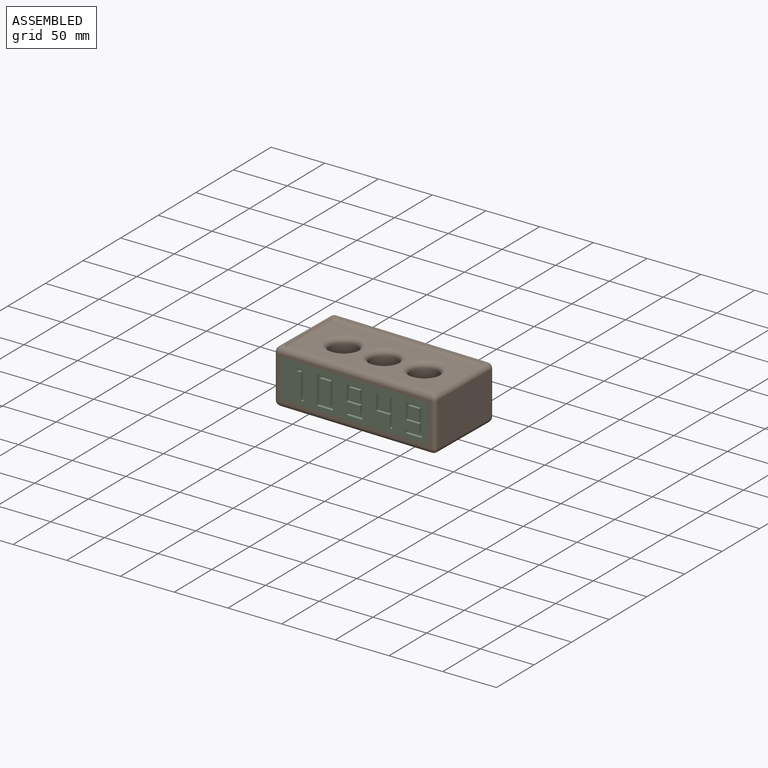
[diagram: assembled view]
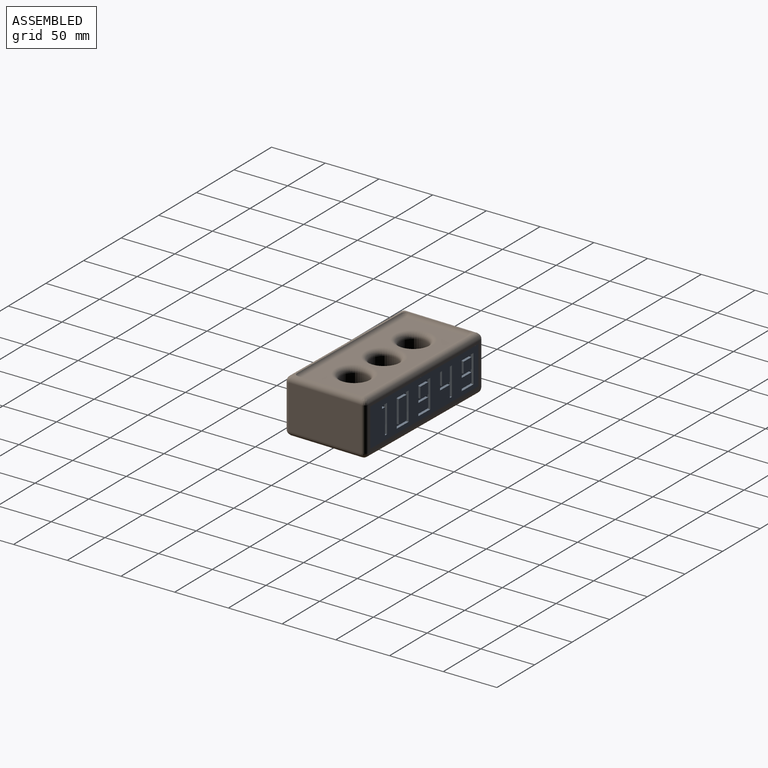
[diagram: assembled view, second angle]
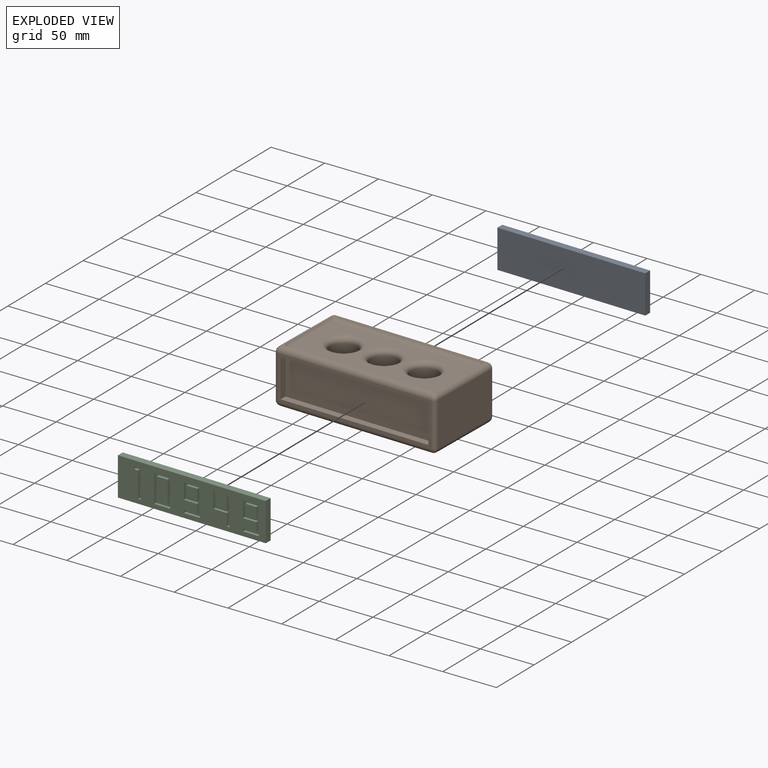
[diagram: exploded view]
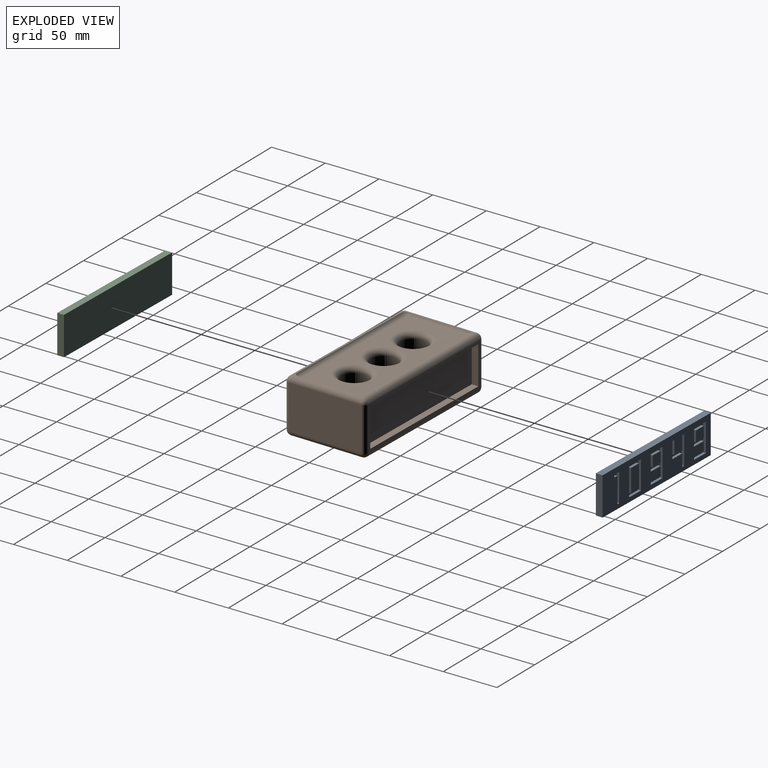
[diagram: exploded view, second angle]
ASSEMBLY  parts=3 mates=2
PART A: 62 faces, bbox 139.7x6.4x35.6 mm
  f0: plane 139.7x35.56mm, normal (0,-1,0), area 3771.3mm2, adj f1,f2,f3,f4,f6,f7,f8,f9
  f1: plane 35.56x6.35mm, normal (1,0,0), area 225.8mm2, adj f0,f2,f4,f5
  f2: plane 139.7x6.35mm, normal (0,0,1), area 887.1mm2, adj f0,f1,f3,f5
  f3: plane 35.56x6.35mm, normal (-1,0,0), area 225.8mm2, adj f0,f2,f4,f5
  f4: plane 139.7x6.35mm, normal (0,0,-1), area 887.1mm2, adj f0,f1,f3,f5
  f5: plane 139.7x35.56mm, normal (0,1,0), area 4967.7mm2, adj f1,f2,f3,f4
  f6: plane 15.24x2.54mm, normal (1,0,0), area 38.7mm2, adj f0,f7,f15,f16
  f7: plane 12.7x2.54mm, normal (0,0,1), area 32.3mm2, adj f0,f6,f8,f16
  f8: plane 11.16x2.54mm, normal (1,0,0), area 28.4mm2, adj f0,f7,f9,f16
  f9: plane 2.54x2.54mm, normal (0,0,1), area 6.5mm2, adj f0,f8,f10,f16
  f10: plane 26.4x2.54mm, normal (-1,0,0), area 67.1mm2, adj f0,f9,f11,f16
  f11: plane 2.54x2.54mm, normal (0,0,-1), area 6.5mm2, adj f0,f10,f12,f16
  f12: plane 12.7x2.54mm, normal (1,0,0), area 32.3mm2, adj f0,f11,f13,f16
  f13: plane 10.16x2.54mm, normal (0,0,-1), area 25.8mm2, adj f0,f12,f14,f16
  f14: plane 12.7x2.54mm, normal (-1,0,0), area 32.3mm2, adj f0,f13,f15,f16
  f15: plane 2.54x2.54mm, normal (0,0,-1), area 6.5mm2, adj f0,f6,f14,f16
  f16: plane 26.4x15.24mm, normal (0,-1,0), area 131.6mm2, adj f6,f7,f8,f9,f10,f11,f12,f13
  f17: plane 26.4x2.54mm, normal (-1,0,0), area 67.1mm2, adj f0,f18,f24,f25
  f18: plane 15.24x2.54mm, normal (0,0,-1), area 38.7mm2, adj f0,f17,f19,f25
  f19: plane 26.4x2.54mm, normal (1,0,0), area 67.1mm2, adj f0,f18,f24,f25
  f20: plane 21.32x2.54mm, normal (1,0,0), area 54.2mm2, adj f21,f23,f25,f26
  f21: plane 10.16x2.54mm, normal (0,0,-1), area 25.8mm2, adj f20,f22,f25,f26
  f22: plane 21.32x2.54mm, normal (-1,0,0), area 54.2mm2, adj f21,f23,f25,f26
  f23: plane 10.16x2.54mm, normal (0,0,1), area 25.8mm2, adj f20,f22,f25,f26
  f24: plane 15.24x2.54mm, normal (0,0,1), area 38.7mm2, adj f0,f17,f19,f25
  f25: plane 26.4x15.24mm, normal (0,-1,0), area 185.7mm2, adj f17,f18,f19,f20,f21,f22,f23,f24
  f26: plane 21.32x10.16mm, normal (0,-1,0), area 216.6mm2, adj f20,f21,f22,f23
  f27: plane 8.62x2.54mm, normal (1,0,0), area 21.9mm2, adj f0,f28,f38,f39
  f28: plane 12.7x2.54mm, normal (0,0,-1), area 32.3mm2, adj f0,f27,f29,f39
  f29: plane 2.54x2.54mm, normal (1,0,0), area 6.5mm2, adj f0,f28,f30,f39
  f30: plane 15.24x2.54mm, normal (0,0,1), area 38.7mm2, adj f0,f29,f31,f39
  f31: plane 26.4x2.54mm, normal (-1,0,0), area 67.1mm2, adj f0,f30,f32,f39
  f32: plane 15.24x2.54mm, normal (0,0,-1), area 38.7mm2, adj f0,f31,f33,f39
  f33: plane 15.24x2.54mm, normal (1,0,0), area 38.7mm2, adj f0,f32,f38,f39
  f34: plane 10.16x2.54mm, normal (-1,0,0), area 25.8mm2, adj f35,f37,f39,f40
  f35: plane 10.16x2.54mm, normal (0,0,1), area 25.8mm2, adj f34,f36,f39,f40
  f36: plane 10.16x2.54mm, normal (1,0,0), area 25.8mm2, adj f35,f37,f39,f40
  f37: plane 10.16x2.54mm, normal (0,0,-1), area 25.8mm2, adj f34,f36,f39,f40
  f38: plane 12.7x2.54mm, normal (0,0,1), area 32.3mm2, adj f0,f27,f33,f39
  f39: plane 26.4x15.24mm, normal (0,-1,0), area 189.6mm2, adj f27,f28,f29,f30,f31,f32,f33,f34
  f40: plane 10.16x10.16mm, normal (0,-1,0), area 103.2mm2, adj f34,f35,f36,f37
  f41: plane 10.16x2.54mm, normal (0,0,-1), area 25.8mm2, adj f42,f52,f53,f61
  f42: plane 10.16x2.54mm, normal (-1,0,0), area 25.8mm2, adj f41,f43,f53,f61
  f43: plane 10.16x2.54mm, normal (0,0,1), area 25.8mm2, adj f42,f52,f53,f61
  f44: plane 26.4x2.54mm, normal (-1,0,0), area 67.1mm2, adj f0,f45,f51,f53
  f45: plane 15.24x2.54mm, normal (0,0,-1), area 38.7mm2, adj f0,f44,f46,f53
  f46: plane 15.24x2.54mm, normal (1,0,0), area 38.7mm2, adj f0,f45,f47,f53
  f47: plane 12.7x2.54mm, normal (0,0,1), area 32.3mm2, adj f0,f46,f48,f53
  f48: plane 8.62x2.54mm, normal (1,0,0), area 21.9mm2, adj f0,f47,f49,f53
  f49: plane 12.7x2.54mm, normal (0,0,-1), area 32.3mm2, adj f0,f48,f50,f53
  f50: plane 2.54x2.54mm, normal (1,0,0), area 6.5mm2, adj f0,f49,f51,f53
  f51: plane 15.24x2.54mm, normal (0,0,1), area 38.7mm2, adj f0,f44,f50,f53
  f52: plane 10.16x2.54mm, normal (1,0,0), area 25.8mm2, adj f41,f43,f53,f61
  f53: plane 26.4x15.24mm, normal (0,-1,0), area 189.6mm2, adj f41,f42,f43,f44,f45,f46,f47,f48
  f54: plane 26.4x2.54mm, normal (-1,0,0), area 67.1mm2, adj f0,f55,f59,f60
  f55: plane 6.35x2.54mm, normal (0,0,-1), area 16.1mm2, adj f0,f54,f56,f60
  f56: plane 2.54x2.54mm, normal (1,0,0), area 6.5mm2, adj f0,f55,f57,f60
  f57: plane 3.81x2.54mm, normal (0,0,1), area 9.7mm2, adj f0,f56,f58,f60
  f58: plane 23.86x2.54mm, normal (1,0,0), area 60.6mm2, adj f0,f57,f59,f60
  f59: plane 2.54x2.54mm, normal (0,0,1), area 6.5mm2, adj f0,f54,f58,f60
  f60: plane 26.4x6.35mm, normal (0,-1,0), area 76.7mm2, adj f54,f55,f56,f57,f58,f59
  f61: plane 10.16x10.16mm, normal (0,-1,0), area 103.2mm2, adj f41,f42,f43,f52
PART B: 69 faces, bbox 152.4x76.2x50.8 mm
  f0: plane 3.81x3.81mm, normal (0,0,-1), area 3.1mm2, adj f48,f49,f55
  f1: plane 3.81x3.81mm, normal (0,0,-1), area 3.1mm2, adj f50,f51,f55
  f2: plane 3.81x3.81mm, normal (0,0,-1), area 3.1mm2, adj f42,f43,f51
  f3: cylinder r=12.7mm len=35.56mm, axis (0,0,-1), area 2837.6mm2, adj f36,f56
  f4: cylinder r=12.7mm len=35.56mm, axis (0,0,-1), area 2837.6mm2, adj f37,f57
  f5: cylinder r=12.7mm len=35.56mm, axis (0,0,-1), area 2837.6mm2, adj f38,f58
  f6: plane 3.81x3.81mm, normal (0,0,1), area 3.1mm2, adj f28,f29,f35
  f7: plane 3.81x3.81mm, normal (0,0,1), area 3.1mm2, adj f30,f31,f35
  f8: plane 3.81x3.81mm, normal (0,0,1), area 3.1mm2, adj f22,f23,f31
  f9: plane 3.81x3.81mm, normal (0,0,1), area 3.1mm2, adj f21,f23,f28
  f10: plane 68.58x40.64mm, normal (-1,0,0), area 2787.1mm2, adj f11,f17,f28,f48
  f11: cylinder r=3.81mm len=40.64mm, axis (0,0,-1), area 243.2mm2, adj f10,f12,f32,f44
  f12: plane 144.78x40.64mm, normal (0,-1,0), area 916.1mm2, adj f11,f13,f35,f43,f59,f60,f61,f62
  f13: cylinder r=3.81mm len=40.64mm, axis (0,0,-1), area 243.2mm2, adj f12,f14,f34,f47
  f14: plane 68.58x40.64mm, normal (1,0,0), area 2787.1mm2, adj f13,f15,f31,f51
  f15: cylinder r=3.81mm len=40.64mm, axis (0,0,-1), area 243.2mm2, adj f14,f16,f27,f54
  f16: plane 144.78x40.64mm, normal (0,1,0), area 916.1mm2, adj f15,f17,f23,f55,f64,f65,f66,f67
  f17: cylinder r=3.81mm len=40.64mm, axis (0,0,-1), area 243.2mm2, adj f10,f16,f24,f52
  f18: plane 3.81x3.81mm, normal (0,0,-1), area 3.1mm2, adj f41,f43,f48
  f19: plane 133.44x57.24mm, normal (0,0,1), area 4658.9mm2, adj f20,f25,f26,f33,f36,f37,f38
  f20: cylinder r=5.08mm len=134.62mm, axis (1,0,0), area 713mm2, adj f19,f21,f22,f23
  f21: bspline ~4.4x4.4mm, area 17.9mm2, adj f9,f20,f25
  f22: bspline ~4.4x4.4mm, area 17.9mm2, adj f8,f20,f26
  f23: cylinder r=5.08mm len=144.78mm, axis (1,0,0), area 1145.2mm2, adj f8,f9,f16,f20,f24,f27
  f24: bspline ~6.23x5.08mm, area 31.2mm2, adj f17,f23,f28
  f25: cylinder r=5.08mm len=58.42mm, axis (0,-1,0), area 307.6mm2, adj f19,f21,f28,f29
  f26: cylinder r=5.08mm len=58.42mm, axis (0,-1,0), area 307.6mm2, adj f19,f22,f30,f31
  f27: bspline ~6.23x5.08mm, area 31.2mm2, adj f15,f23,f31
  f28: cylinder r=5.08mm len=68.58mm, axis (0,1,0), area 537.1mm2, adj f6,f9,f10,f24,f25,f32
  f29: bspline ~4.4x4.4mm, area 17.9mm2, adj f6,f25,f33
  f30: bspline ~4.4x4.4mm, area 17.9mm2, adj f7,f26,f33
  f31: cylinder r=5.08mm len=68.58mm, axis (0,-1,0), area 537.1mm2, adj f7,f8,f14,f26,f27,f34
  f32: bspline ~6.23x5.08mm, area 31.2mm2, adj f11,f28,f35
  f33: cylinder r=5.08mm len=134.62mm, axis (1,0,0), area 713mm2, adj f19,f29,f30,f35
  f34: bspline ~6.23x5.08mm, area 31.2mm2, adj f13,f31,f35
  f35: cylinder r=5.08mm len=144.78mm, axis (-1,0,0), area 1145.2mm2, adj f6,f7,f12,f32,f33,f34
  f36: torus R=17.78mm, axis (0,0,1), area 729.3mm2, adj f3,f19
  f37: torus R=17.78mm, axis (0,0,1), area 729.3mm2, adj f4,f19
  f38: torus R=17.78mm, axis (0,0,1), area 729.3mm2, adj f5,f19
  f39: plane 133.44x57.24mm, normal (0,0,-1), area 4658.9mm2, adj f40,f45,f46,f53,f56,f57,f58
  f40: cylinder r=5.08mm len=134.62mm, axis (-1,0,0), area 713mm2, adj f39,f41,f42,f43
  f41: bspline ~4.4x4.4mm, area 17.9mm2, adj f18,f40,f45
  f42: bspline ~4.4x4.4mm, area 17.9mm2, adj f2,f40,f46
  f43: cylinder r=5.08mm len=144.78mm, axis (1,0,0), area 1145.2mm2, adj f2,f12,f18,f40,f44,f47
  f44: bspline ~6.23x5.08mm, area 30.3mm2, adj f11,f43,f48
  f45: cylinder r=5.08mm len=58.42mm, axis (0,1,0), area 307.6mm2, adj f39,f41,f48,f49
  f46: cylinder r=5.08mm len=58.42mm, axis (0,1,0), area 307.6mm2, adj f39,f42,f50,f51
  f47: bspline ~6.23x5.08mm, area 31.2mm2, adj f13,f43,f51
  f48: cylinder r=5.08mm len=68.58mm, axis (0,-1,0), area 537.1mm2, adj f0,f10,f18,f44,f45,f52
  f49: bspline ~4.4x4.4mm, area 17.9mm2, adj f0,f45,f53
  f50: bspline ~4.4x4.4mm, area 17.9mm2, adj f1,f46,f53
  f51: cylinder r=5.08mm len=68.58mm, axis (0,1,0), area 537.1mm2, adj f1,f2,f14,f46,f47,f54
  f52: bspline ~6.23x5.08mm, area 31.2mm2, adj f17,f48,f55
  f53: cylinder r=5.08mm len=134.62mm, axis (-1,0,0), area 713mm2, adj f39,f49,f50,f55
  f54: bspline ~6.23x5.08mm, area 31.2mm2, adj f15,f51,f55
  f55: cylinder r=5.08mm len=144.78mm, axis (-1,0,0), area 1145.2mm2, adj f0,f1,f16,f52,f53,f54
  f56: torus R=17.78mm, axis (0,0,-1), area 729.3mm2, adj f3,f39
  f57: torus R=17.78mm, axis (0,0,-1), area 729.3mm2, adj f4,f39
  f58: torus R=17.78mm, axis (0,0,-1), area 729.3mm2, adj f5,f39
  f59: plane 139.7x6.35mm, normal (0,0,-1), area 887.1mm2, adj f12,f60,f62,f63
  f60: plane 35.56x6.35mm, normal (1,0,0), area 225.8mm2, adj f12,f59,f61,f63
  f61: plane 139.7x6.35mm, normal (0,0,1), area 887.1mm2, adj f12,f60,f62,f63
  f62: plane 35.56x6.35mm, normal (-1,0,0), area 225.8mm2, adj f12,f59,f61,f63
  f63: plane 139.7x35.56mm, normal (0,-1,0), area 4967.7mm2, adj f59,f60,f61,f62
  f64: plane 139.7x6.35mm, normal (0,0,-1), area 887.1mm2, adj f16,f65,f67,f68
  f65: plane 35.56x6.35mm, normal (-1,0,0), area 225.8mm2, adj f16,f64,f66,f68
  f66: plane 139.7x6.35mm, normal (0,0,1), area 887.1mm2, adj f16,f65,f67,f68
  f67: plane 35.56x6.35mm, normal (1,0,0), area 225.8mm2, adj f16,f64,f66,f68
  f68: plane 139.7x35.56mm, normal (0,1,0), area 4967.7mm2, adj f64,f65,f66,f67
PART C: same geometry as A
PLACE A rot(axis=(0,0,1),178.8deg) t=(1.04,38.08,-0.33)mm
PLACE B rot(axis=(0,0,-1),1.2deg) t=(0.24,-0.01,-25.73)mm
PLACE C rot(axis=(0,0,-1),1.2deg) t=(-0.55,-38.1,-0.33)mm
MATE fastened B.f68 <-> A.f5  axis (0.02,1,0) through (0.9,31.73,-0.33)mm
MATE fastened C.f5 <-> B.f63  axis (0.02,1,0) through (-0.42,-31.75,-0.33)mm
